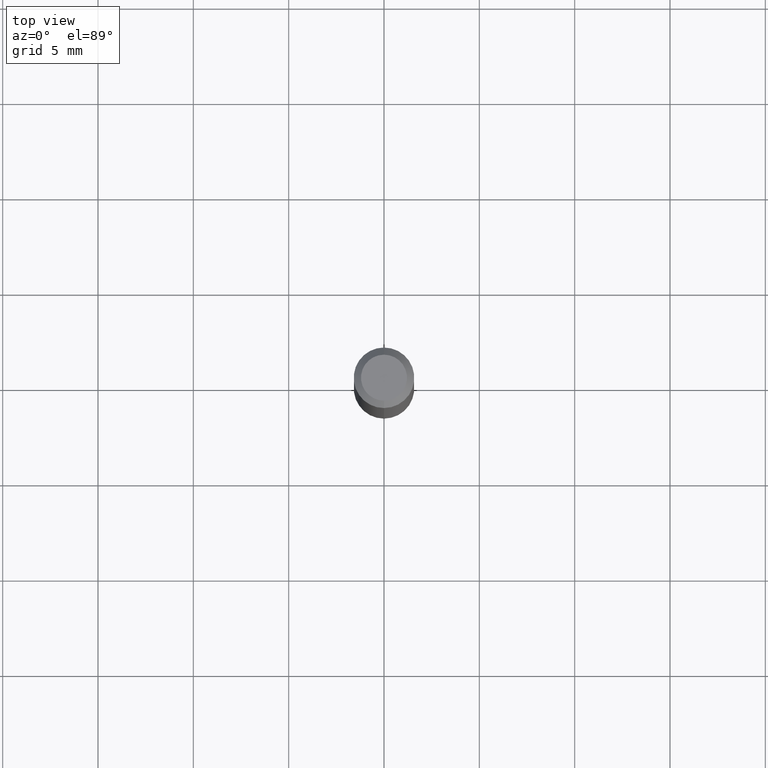
[diagram: clean part render]
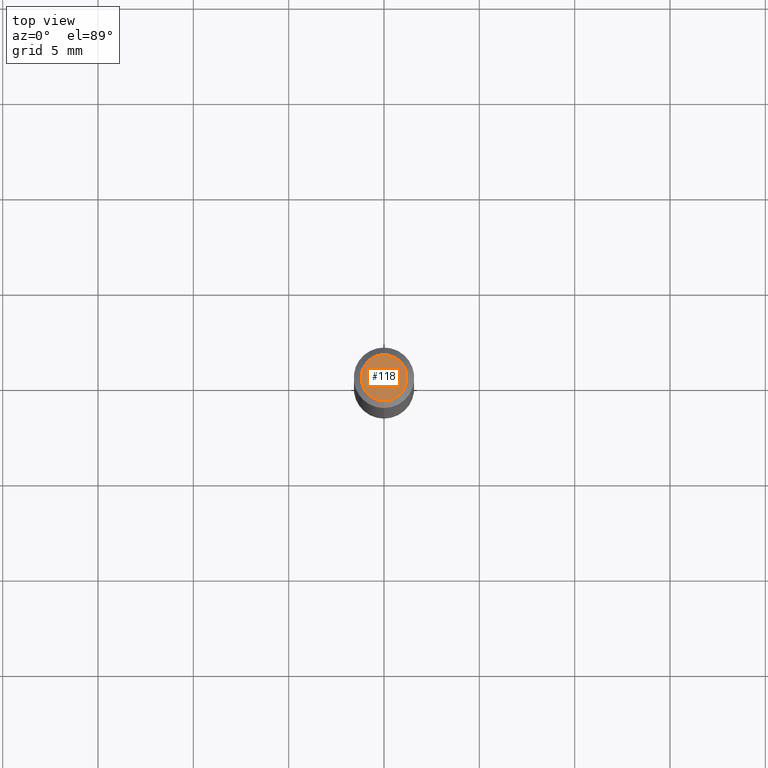
[diagram: same view with one face highlighted and labeled with its STEP entity id]
A machine part, top view. The second image highlights one B-rep face of the part: STEP entity #118.
In plain terms, the highlighted planar face has unit normal (0, -0, -1).
Its self-contained STEP definition (entity closure, byte-faithful):
#29 = EDGE_LOOP ( 'NONE', ( #61, #139 ) ) ;
#50 = AXIS2_PLACEMENT_3D ( 'NONE', #65, #222, #315 ) ;
#61 = ORIENTED_EDGE ( 'NONE', *, *, #138, .T. ) ;
#65 = CARTESIAN_POINT ( 'NONE',  ( 2.166741149257762773E-46, -3.093535350110797396E-32, -8.860232749383880225E-18 ) ) ;
#87 = CARTESIAN_POINT ( 'NONE',  ( 2.166741149257762773E-46, -3.093535350110797396E-32, -8.860232749383880225E-18 ) ) ;
#108 = AXIS2_PLACEMENT_3D ( 'NONE', #460, #343, #271 ) ;
#118 = ADVANCED_FACE ( 'NONE', ( #190 ), #453, .F. ) ;
#138 = EDGE_CURVE ( 'NONE', #493, #430, #386, .T. ) ;
#139 = ORIENTED_EDGE ( 'NONE', *, *, #457, .T. ) ;
#190 = FACE_OUTER_BOUND ( 'NONE', #29, .T. ) ;
#198 = DIRECTION ( 'NONE',  ( -6.982962677686266711E-15, -1.000000000000000000, 3.491483167105192777E-15 ) ) ;
#208 = DIRECTION ( 'NONE',  ( -2.445467529516572820E-29, 3.491483167105192382E-15, 1.000000000000000000 ) ) ;
#222 = DIRECTION ( 'NONE',  ( -2.445467529516572820E-29, 3.491483167105192382E-15, 1.000000000000000000 ) ) ;
#271 = DIRECTION ( 'NONE',  ( 6.982962677686265922E-15, 1.000000000000000000, -3.491483167105192382E-15 ) ) ;
#315 = DIRECTION ( 'NONE',  ( -6.982962677686266711E-15, -1.000000000000000000, 3.491483167105192777E-15 ) ) ;
#343 = DIRECTION ( 'NONE',  ( 2.445467529516572540E-29, -3.491483167105192382E-15, -1.000000000000000000 ) ) ;
#359 = CARTESIAN_POINT ( 'NONE',  ( 3.840629472727447874E-16, 0.04749999999999999362, -1.747056831868805383E-16 ) ) ;
#386 = CIRCLE ( 'NONE', #50, 0.04749999999999999362 ) ;
#387 = AXIS2_PLACEMENT_3D ( 'NONE', #87, #208, #198 ) ;
#430 = VERTEX_POINT ( 'NONE', #481 ) ;
#453 = PLANE ( 'NONE',  #108 ) ;
#457 = EDGE_CURVE ( 'NONE', #430, #493, #464, .T. ) ;
#460 = CARTESIAN_POINT ( 'NONE',  ( 3.316907271900976096E-16, 0.04749999999999999362, -1.702755668121885650E-16 ) ) ;
#464 = CIRCLE ( 'NONE', #387, 0.04749999999999999362 ) ;
#481 = CARTESIAN_POINT ( 'NONE',  ( -3.773273898774340269E-16, -0.04749999999999999362, 1.569852176881127439E-16 ) ) ;
#493 = VERTEX_POINT ( 'NONE', #359 ) ;